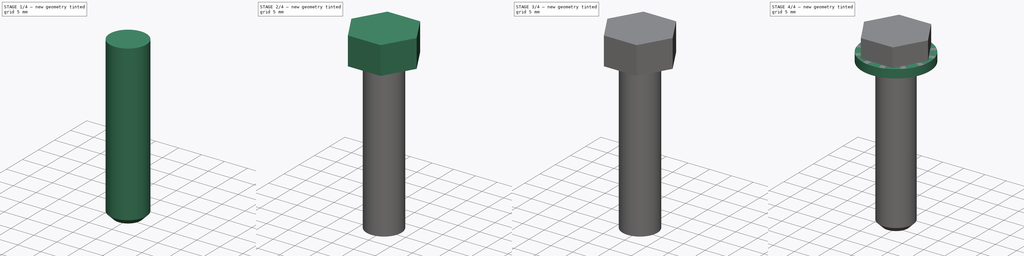
[diagram: build sequence overview — one tinted view per stage of 4, left to right]
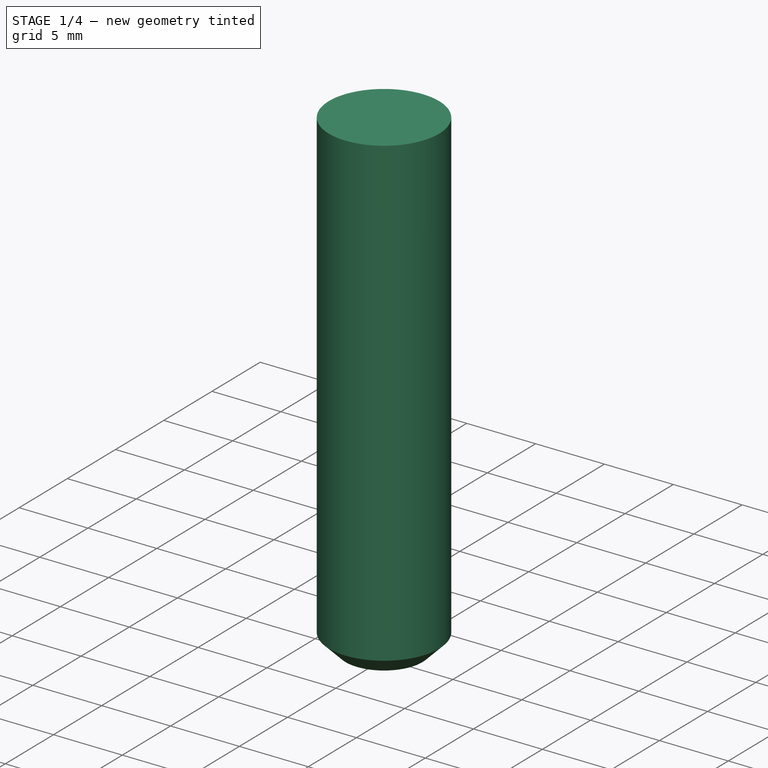
[diagram: stage 1 of 4 — iso view after this stage's code; geometry added in this stage tinted green]
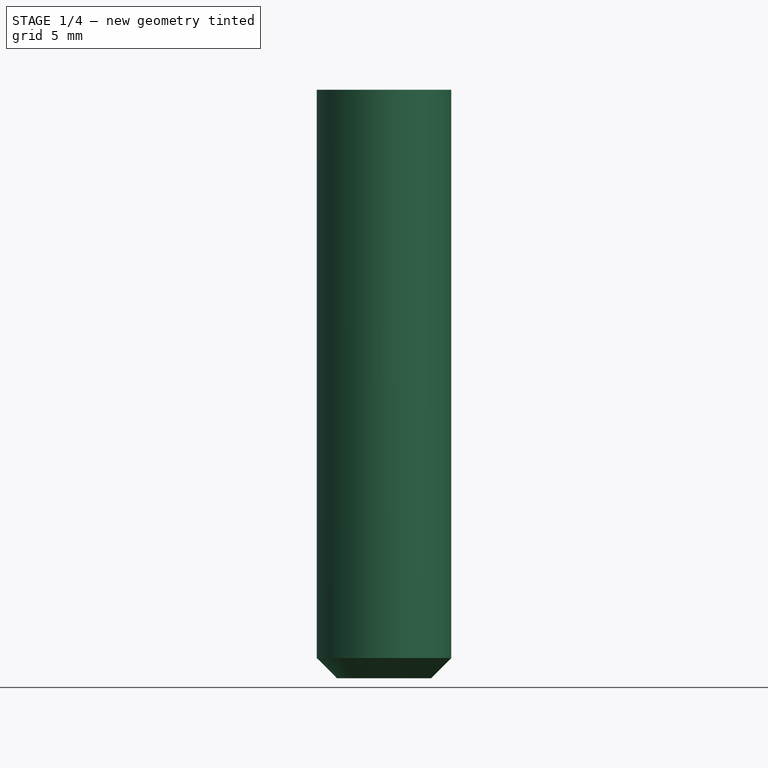
[diagram: stage 1 of 4 — front view after this stage's code; geometry added in this stage tinted green]
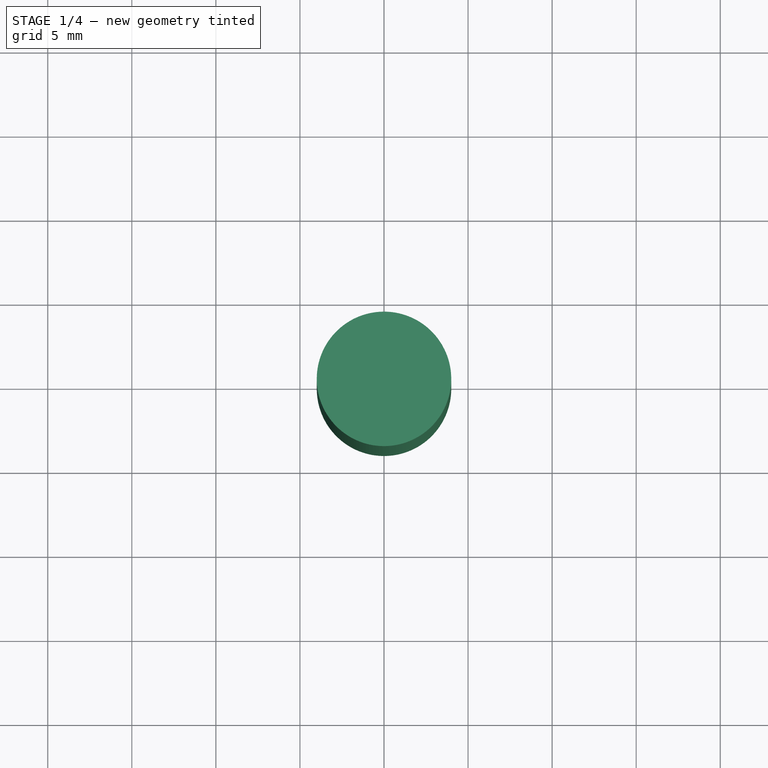
[diagram: stage 1 of 4 — top view after this stage's code; geometry added in this stage tinted green]
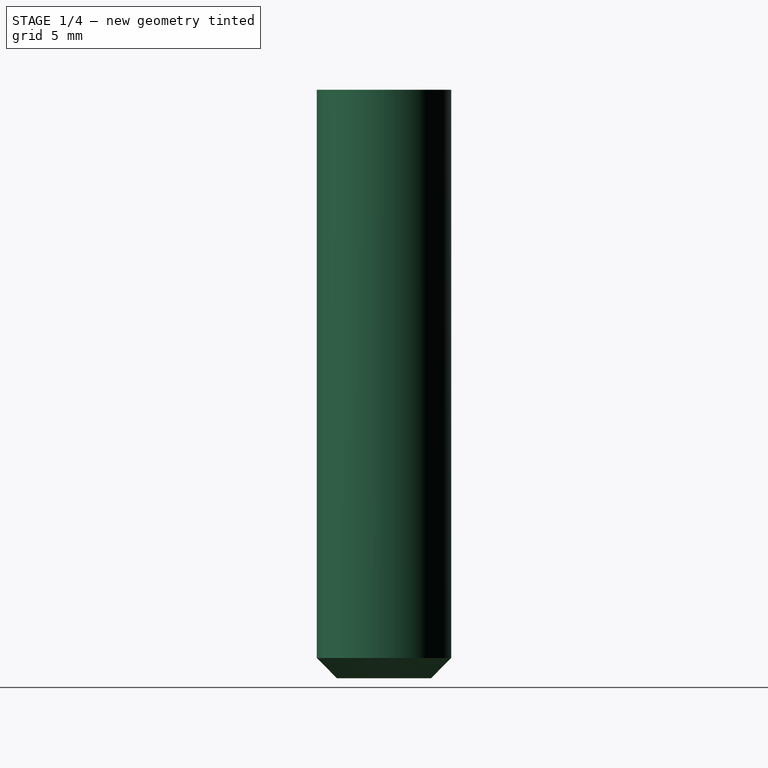
[diagram: stage 1 of 4 — right view after this stage's code; geometry added in this stage tinted green]
FCSTD DOCUMENT  (FreeCAD 0.19R17089 +1543 (Git))
Label: xrepo-lib-003
License: All rights reserved
LicenseURL: http://en.wikipedia.org/wiki/All_rights_reserved
objects: Part::FeaturePython×14, Sketcher::SketchObject×9, App::FeaturePython×8, PartDesign::Pad×8, PartDesign::Body×4, PartDesign::Chamfer×2, PartDesign::Pocket×1
note: 43 computed .brp shape members not serialized (recipe doc carries the construction recipe); baked Part::Feature solids carry a one-line shape summary decoded from their .brp

FEATURE [PartDesign::Body] Body002
  Group = -> [Sketch002,Pad002,Sketch003,Pad003,Sketch004,Pad004,Sketch005,Pocket,Chamfer]
  Origin = -> Origin002
  Tip = -> Chamfer
FEATURE [Part::FeaturePython] Parts002  # WARN: FeaturePython — macro-defined, semantics opaque (R4)
  Group = -> [Body002]
  GroupMode = 0
FEATURE [App::FeaturePython] Constraints003  # WARN: FeaturePython — macro-defined, semantics opaque (R4)
  GroupMode = 1
  _Version = 1
FEATURE [Sketcher::SketchObject] Sketch006
  MapMode = 5
  Support = -> [XY_Plane003]
  sketch-geometry (1):
    g0: Circle CenterX=0 CenterY=0 CenterZ=0 NormalX=0 NormalY=0 NormalZ=1 AngleXU=0 Radius=4
  constraints (2):
    c: Coincident(g0,g-1)
    c: Diameter(g0) = 8  'D1'
FEATURE [PartDesign::Pad] Pad005
  ClaimChildren = false
  Length = 5
  Length2 = 100
  Profile = -> Sketch006
  Reversed = true
  Type = 0
FEATURE [Sketcher::SketchObject] Sketch007
  ExternalGeometry = -> [Pad005]
  MapMode = 5
  Placement = pos=(0,0,-5) rot=(1,0,0;3.14159rad)
  Support = -> [Pad005]
FEATURE [PartDesign::Pad] Pad006
  BaseFeature = -> Pad005
  ClaimChildren = false
  Length = 30
  Length2 = 100
  Profile = -> Sketch007
  Type = 0
FEATURE [PartDesign::Chamfer] Chamfer001
  Base = -> Pad006 [Edge5]
  BaseFeature = -> Pad006
  Size = 1.2
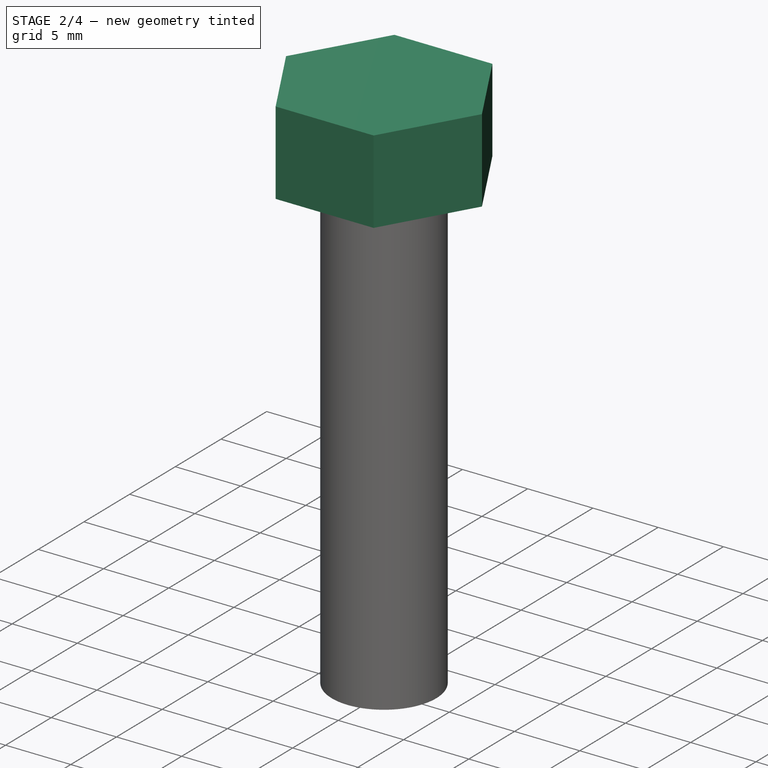
[diagram: stage 2 of 4 — iso view after this stage's code; geometry added in this stage tinted green]
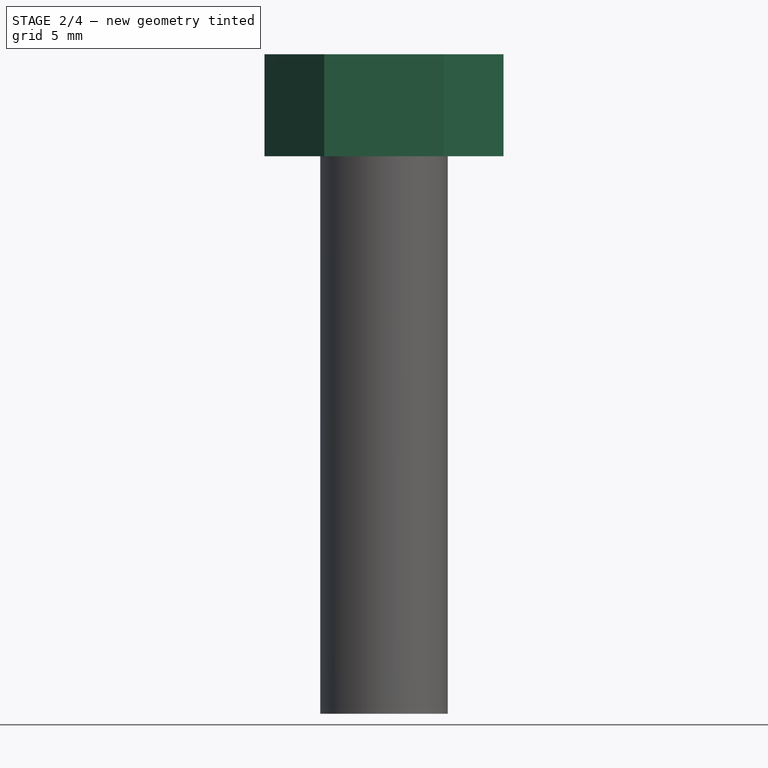
[diagram: stage 2 of 4 — front view after this stage's code; geometry added in this stage tinted green]
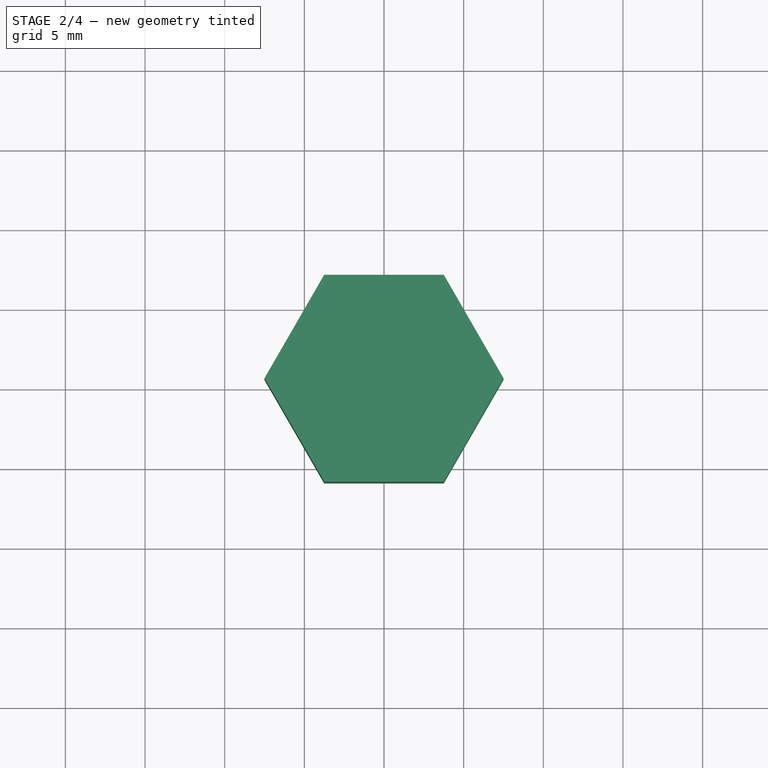
[diagram: stage 2 of 4 — top view after this stage's code; geometry added in this stage tinted green]
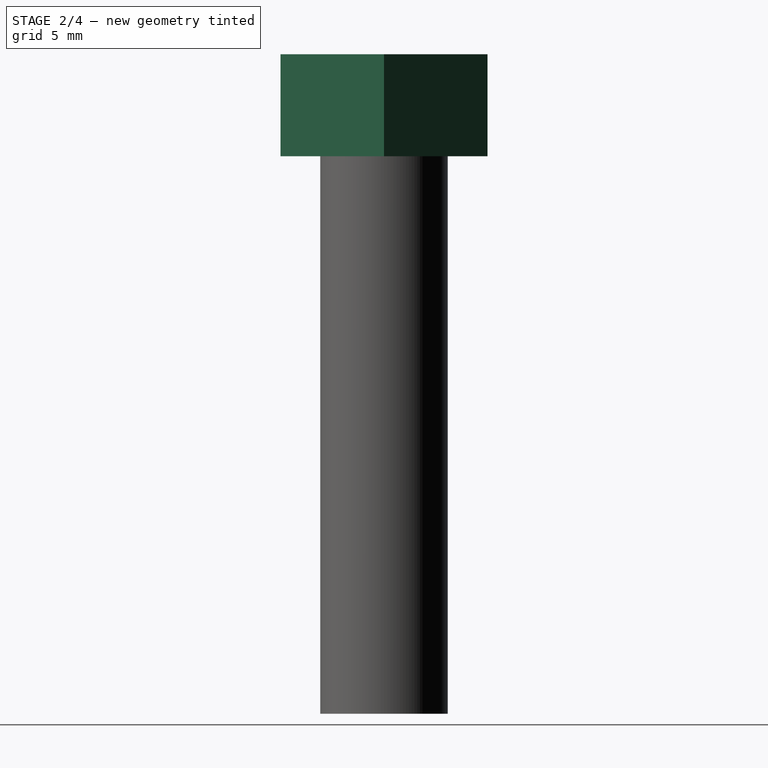
[diagram: stage 2 of 4 — right view after this stage's code; geometry added in this stage tinted green]
FEATURE [PartDesign::Body] Body001
  Group = -> [Sketch001,Pad001]
  Origin = -> Origin001
  Tip = -> Pad001
FEATURE [Part::FeaturePython] Parts001  # WARN: FeaturePython — macro-defined, semantics opaque (R4)
  Group = -> [Body001]
  GroupMode = 0
FEATURE [App::FeaturePython] Constraints002  # WARN: FeaturePython — macro-defined, semantics opaque (R4)
  GroupMode = 1
  _Version = 1
FEATURE [Sketcher::SketchObject] Sketch004
  MapMode = 5
  Support = -> [XY_Plane002]
  sketch-geometry (1):
    g0: Circle CenterX=0 CenterY=0 CenterZ=0 NormalX=0 NormalY=0 NormalZ=1 AngleXU=0 Radius=6.5
  constraints (2):
    c: Coincident(g0,g-1)
    c: Diameter(g0) = 13  'DH'
FEATURE [Sketcher::SketchObject] Sketch002
  MapMode = 5
  Support = -> [XY_Plane002]
  sketch-geometry (1):
    g0: Circle CenterX=0 CenterY=0 CenterZ=0 NormalX=0 NormalY=0 NormalZ=1 AngleXU=0 Radius=4
  constraints (2):
    c: Coincident(g0,g-1)
    c: Diameter(g0) = 8  'D1'
FEATURE [PartDesign::Pad] Pad002
  ClaimChildren = false
  Length = 5
  Length2 = 100
  Profile = -> Sketch002
  Reversed = true
  Type = 0
FEATURE [Sketcher::SketchObject] Sketch003
  ExternalGeometry = -> [Pad002]
  MapMode = 5
  Placement = pos=(0,0,-5) rot=(1,0,0;3.14159rad)
  Support = -> [Pad002]
FEATURE [PartDesign::Pad] Pad003
  BaseFeature = -> Pad002
  ClaimChildren = false
  Length = 30
  Length2 = 100
  Profile = -> Sketch003
  Type = 0
FEATURE [Sketcher::SketchObject] Sketch008
  MapMode = 5
  Support = -> [XY_Plane003]
  sketch-geometry (7):
    g0: LineSegment StartX=7.50555 StartY=0 StartZ=0 EndX=3.75278 EndY=6.5 EndZ=0
    g1: LineSegment StartX=3.75278 StartY=6.5 StartZ=0 EndX=-3.75278 EndY=6.5 EndZ=0
    g2: LineSegment StartX=-3.75278 StartY=6.5 StartZ=0 EndX=-7.50555 EndY=3.3924e-11 EndZ=0
    g3: LineSegment StartX=-7.50555 StartY=3.3924e-11 StartZ=0 EndX=-3.75278 EndY=-6.5 EndZ=0
    g4: LineSegment StartX=-3.75278 StartY=-6.5 StartZ=0 EndX=3.75278 EndY=-6.5 EndZ=0
    g5: LineSegment StartX=3.75278 StartY=-6.5 StartZ=0 EndX=7.50555 EndY=0 EndZ=0
    g6: Circle [constr] CenterX=0 CenterY=0 CenterZ=0 NormalX=0 NormalY=0 NormalZ=1 AngleXU=0 Radius=7.50555
  constraints (16):
    c: Coincident(g0,g1)
    c: Coincident(g1,g2)
    c: Coincident(g2,g3)
    c: Coincident(g3,g4)
    c: Coincident(g4,g5)
    c: Coincident(g5,g0)
    c: Equal(g0, g1-g5) x5
    c: PointOnObject(g0,g6)
    c: PointOnObject(g1,g6)
    c: PointOnObject(g2,g6)
    c: PointOnObject(g3,g6)
    c: PointOnObject(g4,g6)
    c: PointOnObject(g5,g6)
    c: Coincident(g6,g-1)
    c: PointOnObject(g5,g-1)
    c: Distance(g0,g4) = 13  'WS'
FEATURE [PartDesign::Pad] Pad007
  BaseFeature = -> Chamfer001
  ClaimChildren = false
  Length = 6.4
  Length2 = 100
  Profile = -> Sketch008
  Type = 0
FEATURE [PartDesign::Body] Body003
  Group = -> [Sketch006,Pad005,Sketch007,Pad006,Chamfer001,Sketch008,Pad007]
  Origin = -> Origin003
  Tip = -> Pad007
FEATURE [Part::FeaturePython] Parts003  # WARN: FeaturePython — macro-defined, semantics opaque (R4)
  Group = -> [Body003]
  GroupMode = 0
FEATURE [Part::FeaturePython] Element  # link proxy (typed FeaturePython)
  Detach = false
  LinkTransform = true
  LinkedObject = -> Body [Pad.Edge5]
  _Parent = -> Elements
FEATURE [Part::FeaturePython] Element001  # link proxy (typed FeaturePython)
  Detach = false
  LinkTransform = true
  LinkedObject = -> Body [Pad.Edge6]
  _Parent = -> Elements
FEATURE [App::FeaturePython] Elements  # WARN: FeaturePython — macro-defined, semantics opaque (R4)
  Group = -> [Element,Element001]
  GroupMode = 1
FEATURE [Part::FeaturePython] Assembly  label="Assembly000 000"  # WARN: FeaturePython — macro-defined, semantics opaque (R4)
  AutoRelax = true
  BuildShape = 0
  Freeze = false
  Group = -> [Constraints,Elements,Parts]
  GroupMode = 1
  SolverType = 1
  Verbose = false
  _SolverType = 1
  _Version = 1
FEATURE [Part::FeaturePython] Element002  # link proxy (typed FeaturePython)
  Detach = false
  LinkTransform = true
  LinkedObject = -> Body001 [Pad001.Edge20]
  _Parent = -> Elements001
FEATURE [Part::FeaturePython] Element003  # link proxy (typed FeaturePython)
  Detach = false
  LinkTransform = true
  LinkedObject = -> Body001 [Pad001.Edge21]
  _Parent = -> Elements001
FEATURE [App::FeaturePython] Elements001  # WARN: FeaturePython — macro-defined, semantics opaque (R4)
  Group = -> [Element002,Element003]
  GroupMode = 1
FEATURE [Part::FeaturePython] Assembly001  label="Assembly001 000"  # WARN: FeaturePython — macro-defined, semantics opaque (R4)
  AutoRelax = true
  BuildShape = 0
  Freeze = false
  Group = -> [Constraints001,Elements001,Parts001]
  GroupMode = 1
  SolverType = 1
  Verbose = false
  _SolverType = 1
  _Version = 1
FEATURE [Part::FeaturePython] Element004  # link proxy (typed FeaturePython)
  Detach = false
  LinkTransform = true
  LinkedObject = -> Body002 [Pad002.Edge2]
  _Parent = -> Elements002
FEATURE [App::FeaturePython] Elements002  # WARN: FeaturePython — macro-defined, semantics opaque (R4)
  Group = -> [Element004]
  GroupMode = 1
FEATURE [Part::FeaturePython] Assembly002  label="Assembly002 000"  # WARN: FeaturePython — macro-defined, semantics opaque (R4)
  AutoRelax = true
  BuildShape = 0
  Freeze = false
  Group = -> [Constraints002,Elements002,Parts002]
  GroupMode = 1
  SolverType = 1
  Verbose = false
  _SolverType = 1
  _Version = 1
FEATURE [Part::FeaturePython] Assembly003  label="Assembly003 000"  # WARN: FeaturePython — macro-defined, semantics opaque (R4)
  AutoRelax = true
  BuildShape = 0
  Freeze = false
  Group = -> [Constraints003,Elements003,Parts003]
  GroupMode = 1
  SolverType = 1
  Verbose = false
  _SolverType = 1
  _Version = 1
FEATURE [App::FeaturePython] Elements003  # WARN: FeaturePython — macro-defined, semantics opaque (R4)
  Group = -> [Element005]
  GroupMode = 1
FEATURE [Part::FeaturePython] Element005  label="Element004"  # link proxy (typed FeaturePython)
  Detach = false
  LinkTransform = true
  LinkedObject = -> Body003 [Pad007.Edge7]
  _Parent = -> Elements003
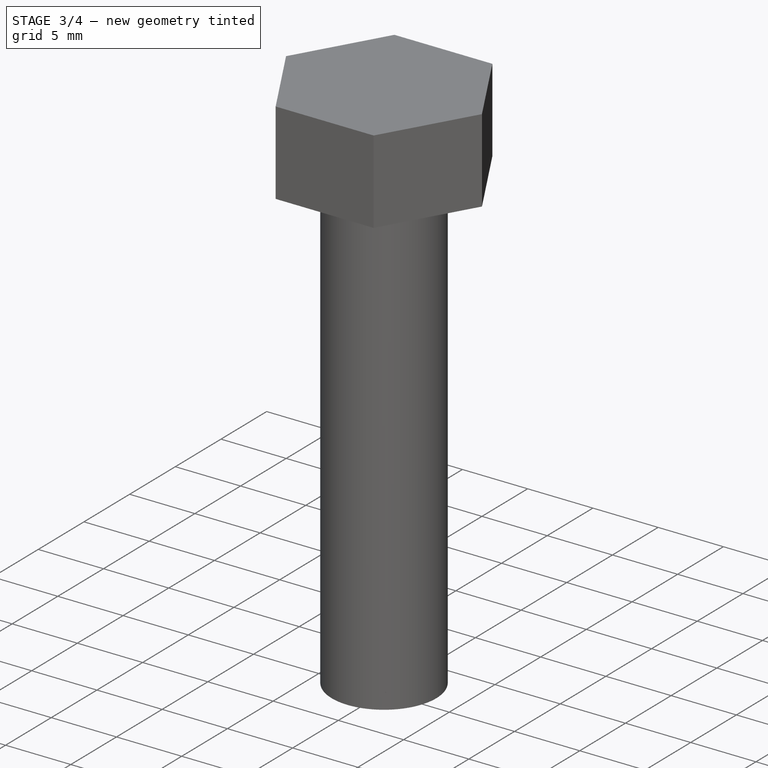
[diagram: stage 3 of 4 — iso view after this stage's code; geometry added in this stage tinted green]
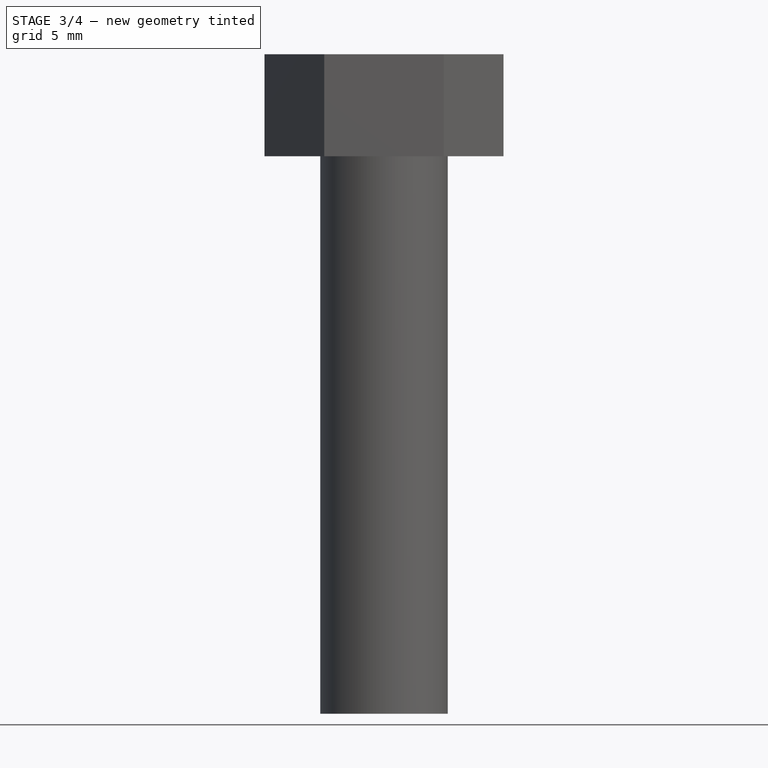
[diagram: stage 3 of 4 — front view after this stage's code; geometry added in this stage tinted green]
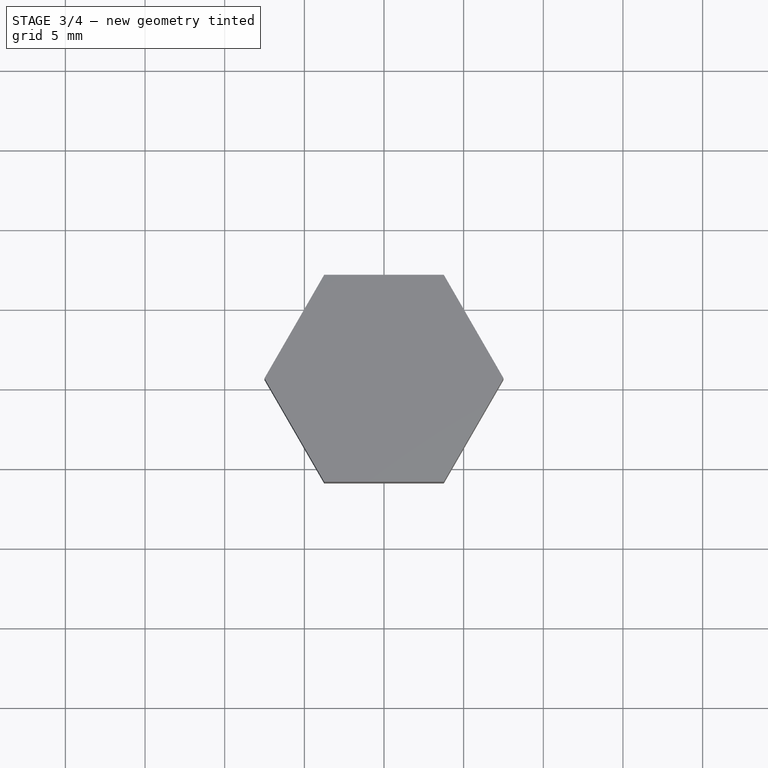
[diagram: stage 3 of 4 — top view after this stage's code; geometry added in this stage tinted green]
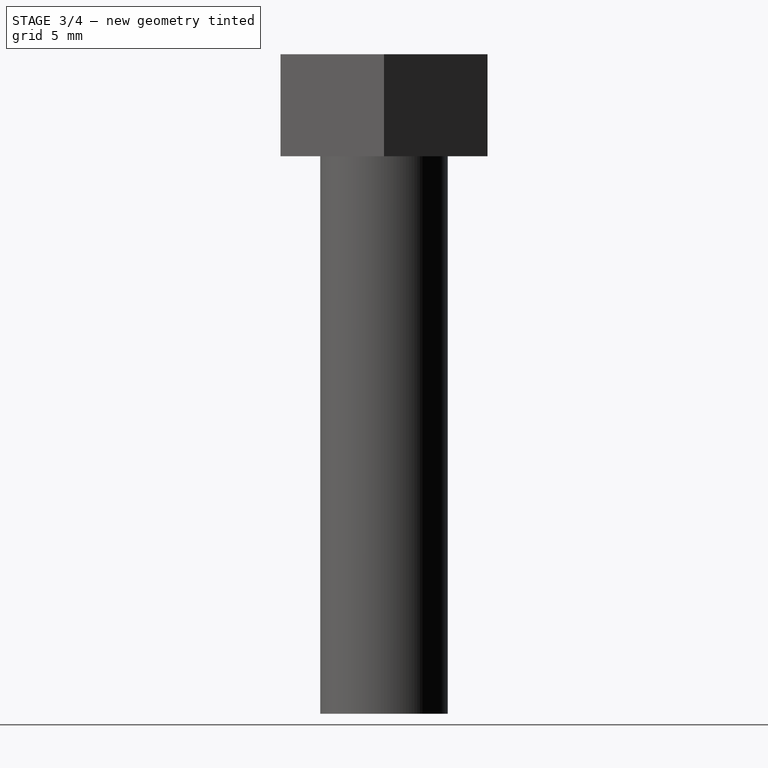
[diagram: stage 3 of 4 — right view after this stage's code; geometry added in this stage tinted green]
FEATURE [PartDesign::Pad] Pad004
  BaseFeature = -> Pad003
  ClaimChildren = false
  Length = 6
  Length2 = 100
  Profile = -> Sketch004
  Type = 0
FEATURE [Sketcher::SketchObject] Sketch005
  MapMode = 5
  Placement = pos=(0,0,6) rot=(0,0,1;0rad)
  Support = -> [Pad004]
  sketch-geometry (7):
    g0: LineSegment StartX=3.4641 StartY=0 StartZ=0 EndX=1.73205 EndY=3 EndZ=0
    g1: LineSegment StartX=1.73205 StartY=3 StartZ=0 EndX=-1.73205 EndY=3 EndZ=0
    g2: LineSegment StartX=-1.73205 StartY=3 StartZ=0 EndX=-3.4641 EndY=0 EndZ=0
    g3: LineSegment StartX=-3.4641 StartY=0 StartZ=0 EndX=-1.73205 EndY=-3 EndZ=0
    g4: LineSegment StartX=-1.73205 StartY=-3 StartZ=0 EndX=1.73205 EndY=-3 EndZ=0
    g5: LineSegment StartX=1.73205 StartY=-3 StartZ=0 EndX=3.4641 EndY=0 EndZ=0
    g6: Circle [constr] CenterX=0 CenterY=0 CenterZ=0 NormalX=0 NormalY=0 NormalZ=1 AngleXU=0 Radius=3.4641
  constraints (16):
    c: Coincident(g0,g1)
    c: Coincident(g1,g2)
    c: Coincident(g2,g3)
    c: Coincident(g3,g4)
    c: Coincident(g4,g5)
    c: Coincident(g5,g0)
    c: Equal(g0, g1-g5) x5
    c: PointOnObject(g0,g6)
    c: PointOnObject(g1,g6)
    c: PointOnObject(g2,g6)
    c: PointOnObject(g3,g6)
    c: PointOnObject(g4,g6)
    c: PointOnObject(g5,g6)
    c: Coincident(g6,g-1)
    c: PointOnObject(g5,g-1)
    c: Distance(g0,g4) = 6  'WS'
FEATURE [PartDesign::Pocket] Pocket
  BaseFeature = -> Pad004
  ClaimChildren = false
  Length = 5
  Length2 = 100
  Profile = -> Sketch005
  Type = 0
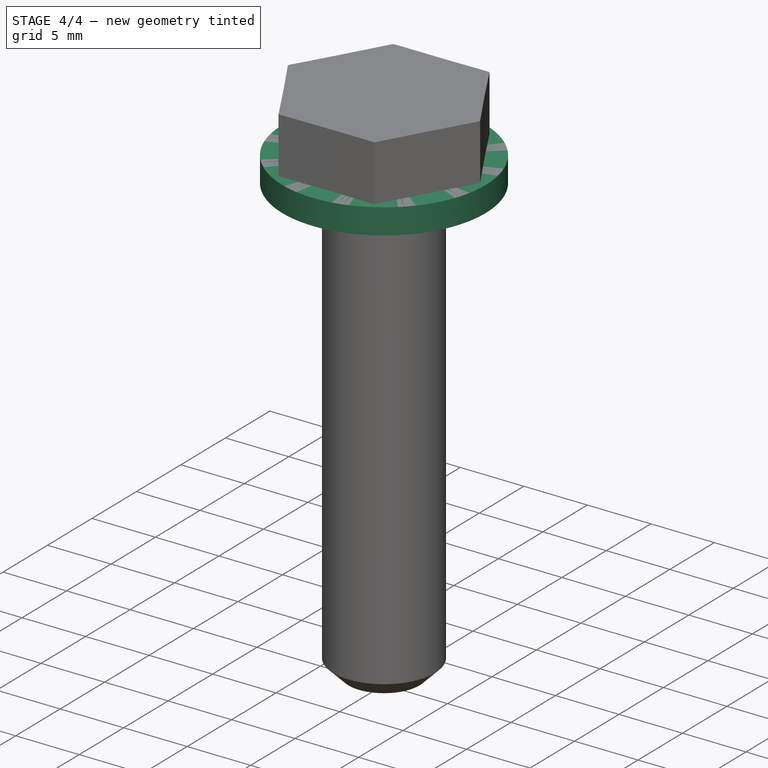
[diagram: stage 4 of 4 — iso view after this stage's code; geometry added in this stage tinted green]
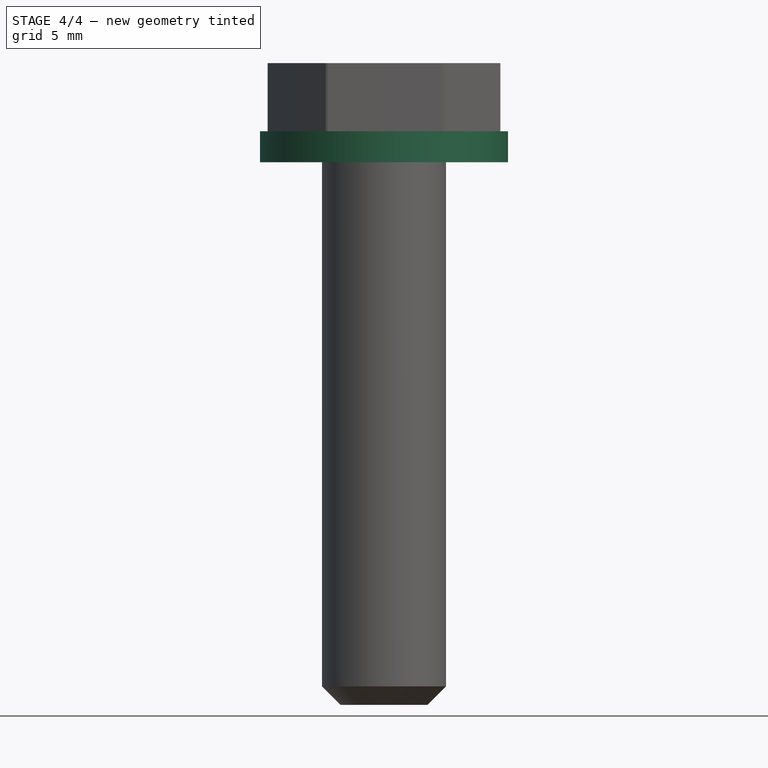
[diagram: stage 4 of 4 — front view after this stage's code; geometry added in this stage tinted green]
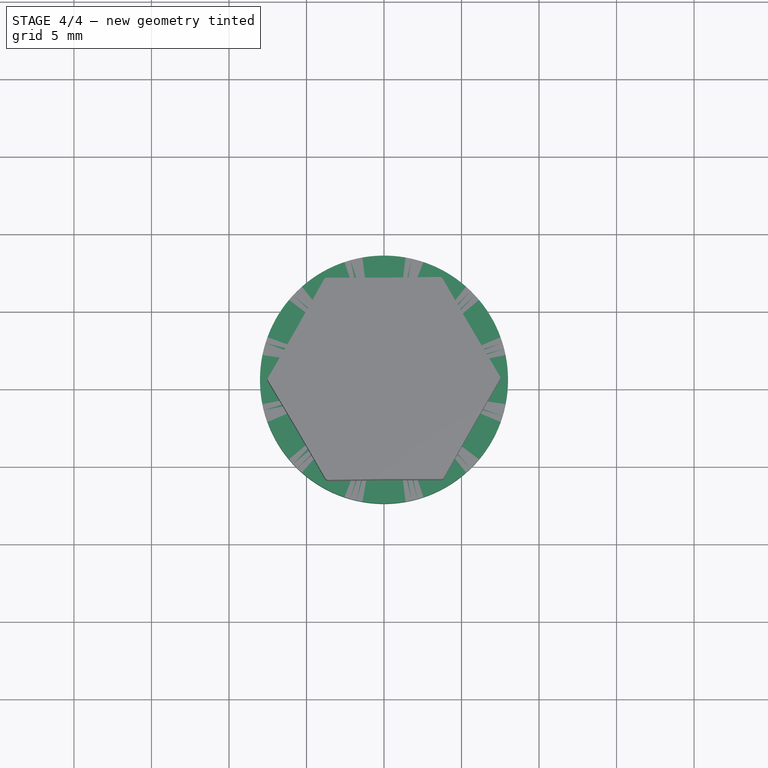
[diagram: stage 4 of 4 — top view after this stage's code; geometry added in this stage tinted green]
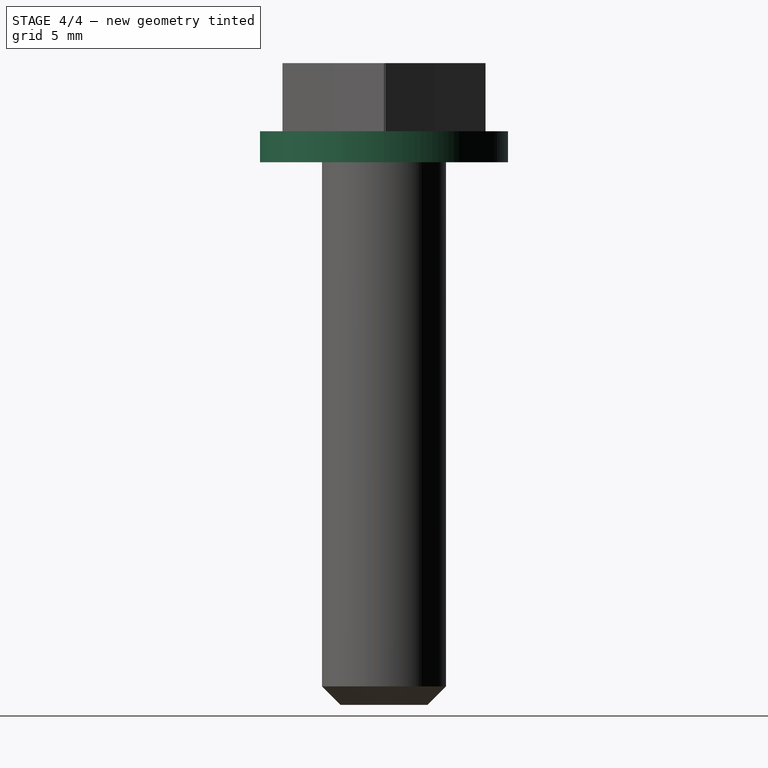
[diagram: stage 4 of 4 — right view after this stage's code; geometry added in this stage tinted green]
FEATURE [App::FeaturePython] Constraints  # WARN: FeaturePython — macro-defined, semantics opaque (R4)
  GroupMode = 1
  _Version = 1
FEATURE [Sketcher::SketchObject] Sketch
  MapMode = 5
  Support = -> [XY_Plane]
  sketch-geometry (2):
    g0: Circle CenterX=0 CenterY=0 CenterZ=0 NormalX=0 NormalY=0 NormalZ=1 AngleXU=0 Radius=4.15
    g1: Circle CenterX=0 CenterY=0 CenterZ=0 NormalX=0 NormalY=0 NormalZ=1 AngleXU=0 Radius=8
  constraints (4):
    c: Coincident(g0,g-1)
    c: Coincident(g1,g0)
    c: Diameter(g0) = 8.3  'D1'
    c: Diameter(g1) = 16  'D2'
FEATURE [PartDesign::Pad] Pad
  ClaimChildren = false
  Length = 2
  Length2 = 100
  Profile = -> Sketch
  Type = 0
FEATURE [PartDesign::Body] Body
  Group = -> [Sketch,Pad]
  Origin = -> Origin
  Tip = -> Pad
FEATURE [Part::FeaturePython] Parts  # WARN: FeaturePython — macro-defined, semantics opaque (R4)
  Group = -> [Body]
  GroupMode = 0
FEATURE [App::FeaturePython] Constraints001  # WARN: FeaturePython — macro-defined, semantics opaque (R4)
  GroupMode = 1
  _Version = 1
FEATURE [Sketcher::SketchObject] Sketch001
  MapMode = 5
  Support = -> [XY_Plane001]
  sketch-geometry (8):
    g0: Circle CenterX=0 CenterY=0 CenterZ=0 NormalX=0 NormalY=0 NormalZ=1 AngleXU=0 Radius=4
    g1: LineSegment StartX=7.50496 StartY=0.0945881 StartZ=0 EndX=3.67056 EndY=6.54678 EndZ=0
    g2: LineSegment StartX=3.67056 StartY=6.54678 StartZ=0 EndX=-3.83439 EndY=6.45219 EndZ=0
    g3: LineSegment StartX=-3.83439 StartY=6.45219 StartZ=0 EndX=-7.50496 EndY=-0.0945881 EndZ=0
    g4: LineSegment StartX=-7.50496 StartY=-0.0945881 StartZ=0 EndX=-3.67056 EndY=-6.54678 EndZ=0
    g5: LineSegment StartX=-3.67056 StartY=-6.54678 StartZ=0 EndX=3.83439 EndY=-6.45219 EndZ=0
    g6: LineSegment StartX=3.83439 StartY=-6.45219 StartZ=0 EndX=7.50496 EndY=0.0945881 EndZ=0
    g7: Circle [constr] CenterX=0 CenterY=0 CenterZ=0 NormalX=0 NormalY=0 NormalZ=1 AngleXU=0 Radius=7.50555
  constraints (17):
    c: Coincident(g0,g-1)
    c: Diameter(g0) = 8  'D1'
    c: Coincident(g1,g2)
    c: Coincident(g2,g3)
    c: Coincident(g3,g4)
    c: Coincident(g4,g5)
    c: Coincident(g5,g6)
    c: Coincident(g6,g1)
    c: Equal(g1, g2-g6) x5
    c: PointOnObject(g1,g7)
    c: PointOnObject(g2,g7)
    c: PointOnObject(g3,g7)
    c: PointOnObject(g4,g7)
    c: PointOnObject(g5,g7)
    c: PointOnObject(g6,g7)
    c: Coincident(g7,g0)
    c: Distance(g1,g5) = 13  'WS'
FEATURE [PartDesign::Pad] Pad001
  ClaimChildren = false
  Length = 6.4
  Length2 = 100
  Profile = -> Sketch001
  Type = 0
FEATURE [PartDesign::Chamfer] Chamfer
  Base = -> Pocket [Edge6]
  BaseFeature = -> Pocket
  Size = 1.2
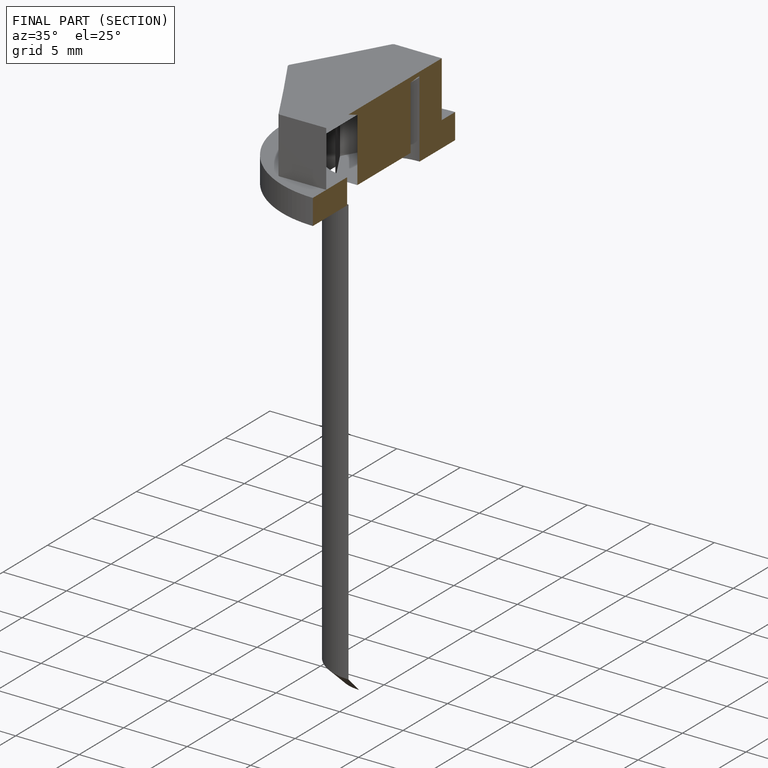
[diagram: finished part — half-section view (interior)]
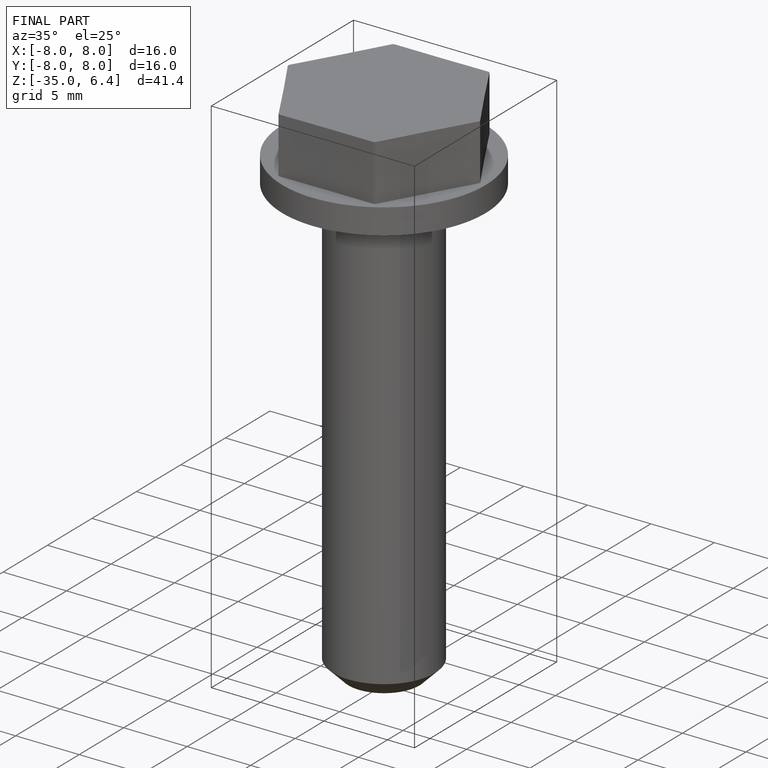
[diagram: finished part — iso view with bounding-box wireframe]
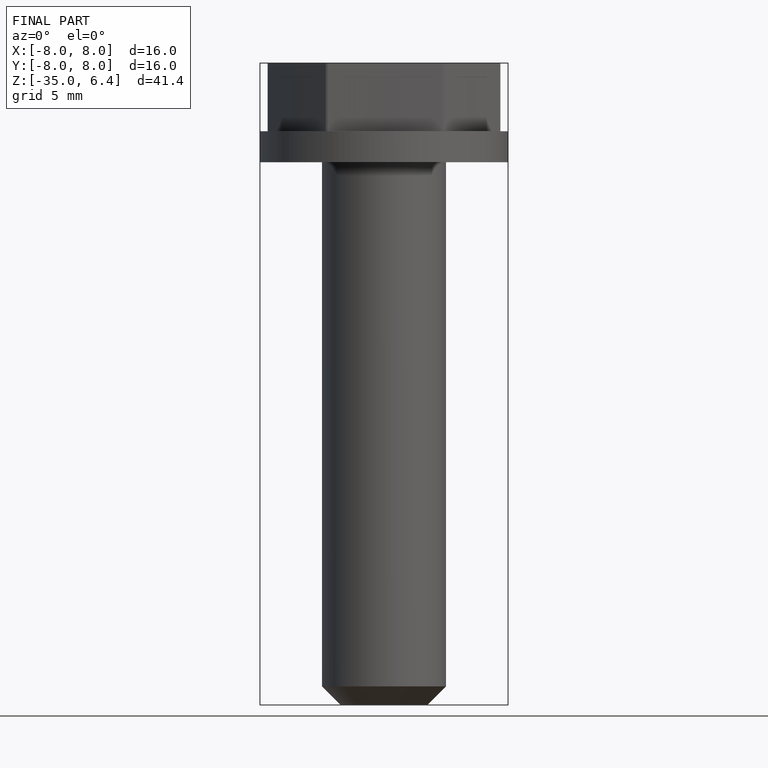
[diagram: finished part — front view with bounding-box wireframe]
